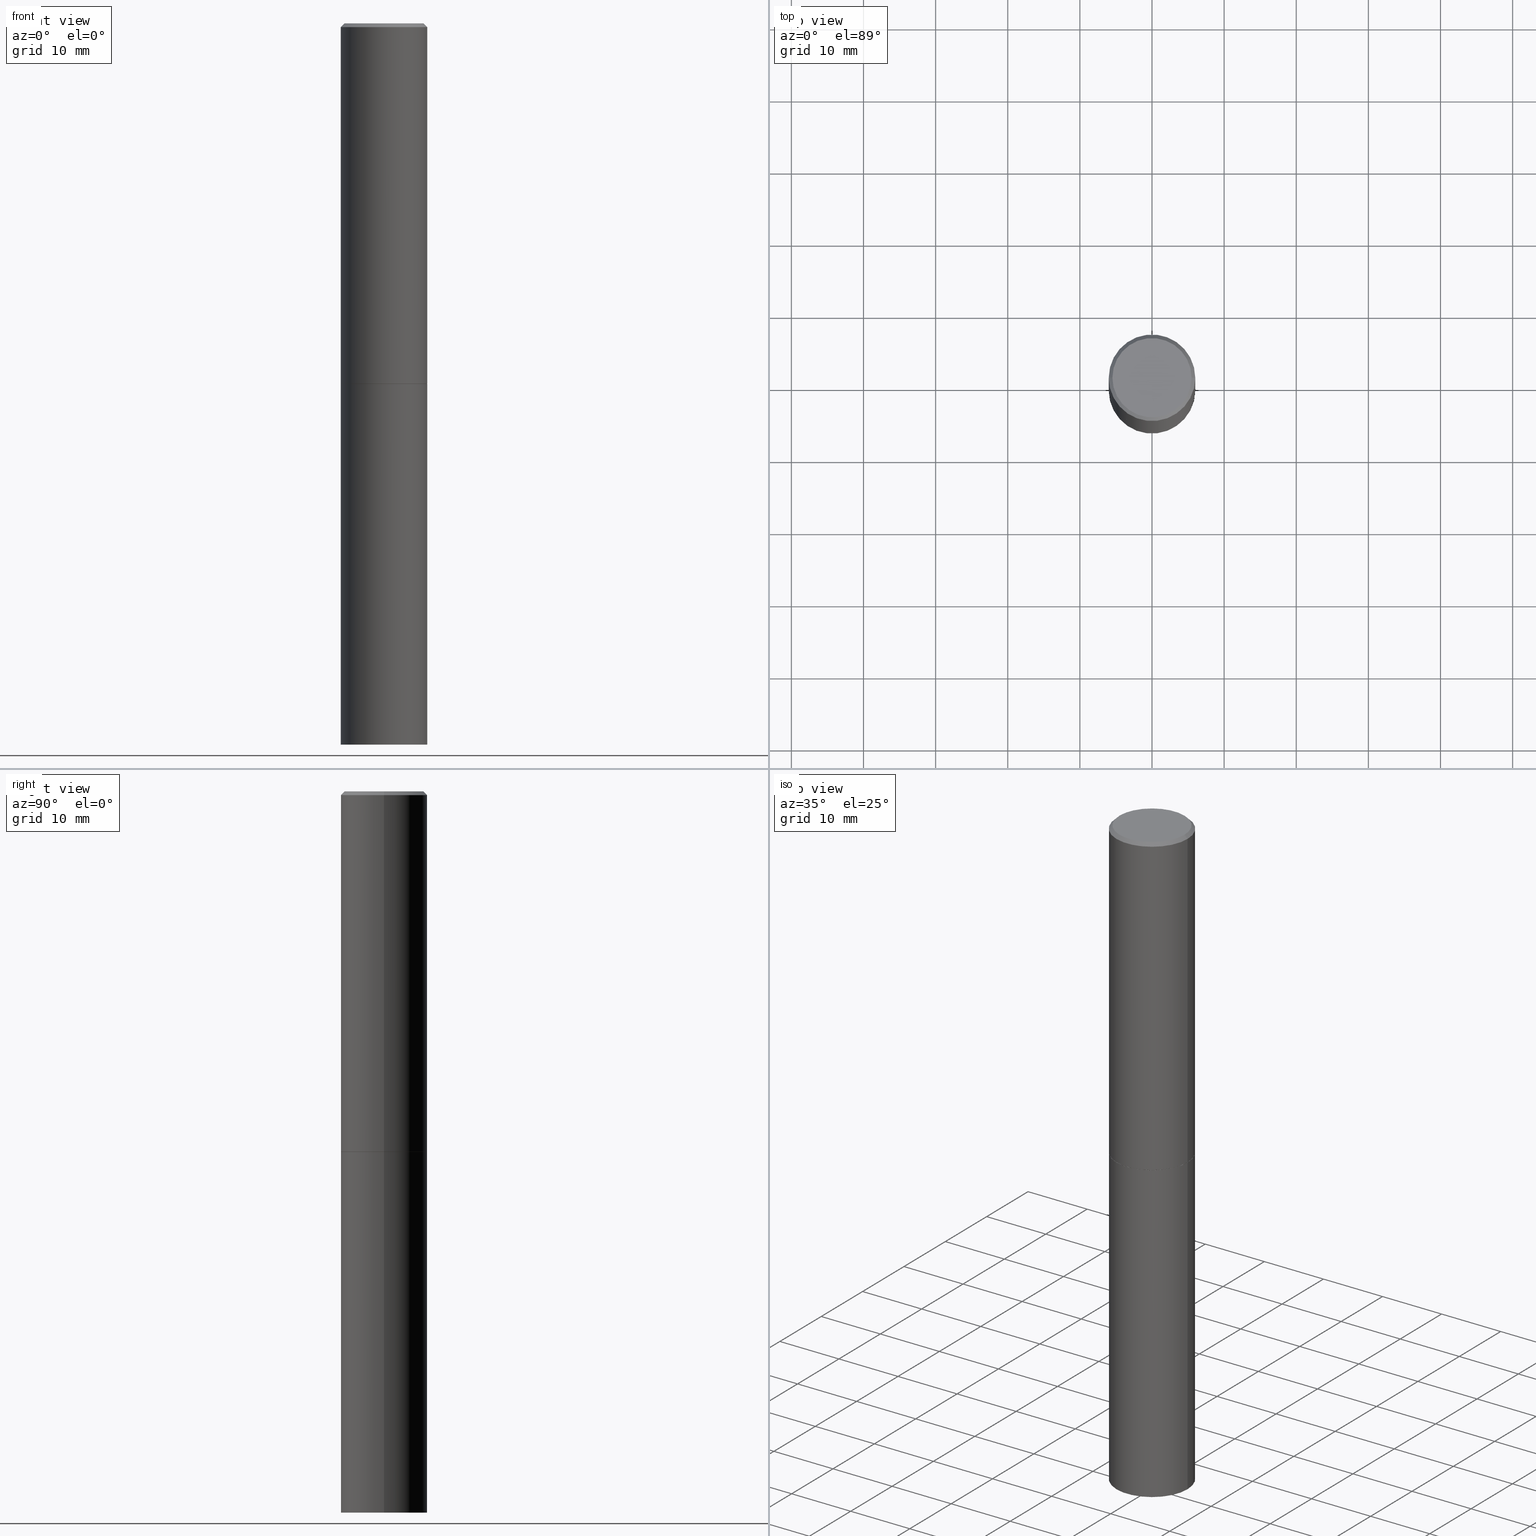
[diagram: canonical four-view strip — front | top / right | iso, engineering-drawing reading convention]
A machine part, canonical four-view strip (front | top / right | iso — engineering-drawing reading convention). The complete STEP part file that produces these views, byte-faithful:
ISO-10303-21;
HEADER;
FILE_DESCRIPTION (( 'STEP AP203' ),
    '1' );
FILE_NAME ('49459.STEP',
    '2024-02-28T22:10:55',
    ( '' ),
    ( '' ),
    'SwSTEP 2.0',
    'SolidWorks 2023',
    '' );
FILE_SCHEMA (( 'CONFIG_CONTROL_DESIGN' ));
ENDSEC;

DATA;
#1 = ORIENTED_EDGE ( 'NONE', *, *, #225, .T. ) ;
#2 = ORGANIZATION ( 'UNSPECIFIED', 'UNSPECIFIED', '' ) ;
#3 = ORIENTED_EDGE ( 'NONE', *, *, #362, .T. ) ;
#4 = CARTESIAN_POINT ( 'NONE',  ( 4.890937612370292426E-31, -6.982962677686317493E-17, -0.02000000000000007674 ) ) ;
#5 = PERSON_AND_ORGANIZATION ( #190, #2 ) ;
#6 = CYLINDRICAL_SURFACE ( 'NONE', #131, 0.2361999999999998545 ) ;
#7 = VECTOR ( 'NONE', #180, 39.37007874015748854 ) ;
#8 = DIRECTION ( 'NONE',  ( -2.445468806185136597E-29, 3.491481338843145583E-15, 1.000000000000000000 ) ) ;
#9 = VECTOR ( 'NONE', #206, 39.37007874015748143 ) ;
#10 = DIRECTION ( 'NONE',  ( -2.445468806185136597E-29, 3.491481338843145583E-15, 1.000000000000000000 ) ) ;
#11 = ADVANCED_FACE ( 'NONE', ( #212 ), #333, .F. ) ;
#12 = PERSON_AND_ORGANIZATION_ROLE ( 'classification_officer' ) ;
#13 = LINE ( 'NONE', #16, #7 ) ;
#14 = CIRCLE ( 'NONE', #178, 0.2351999999999999924 ) ;
#15 = AXIS2_PLACEMENT_3D ( 'NONE', #55, #278, #81 ) ;
#16 = CARTESIAN_POINT ( 'NONE',  ( 0.2351999999999999924, -8.515373837304542218E-15, -1.968500000000000139 ) ) ;
#17 = ORIENTED_EDGE ( 'NONE', *, *, #251, .F. ) ;
#18 = COORDINATED_UNIVERSAL_TIME_OFFSET ( 5, 0, .BEHIND. ) ;
#19 = AXIS2_PLACEMENT_3D ( 'NONE', #21, #116, #138 ) ;
#20 = AXIS2_PLACEMENT_3D ( 'NONE', #141, #295, #96 ) ;
#21 = CARTESIAN_POINT ( 'NONE',  ( 4.811459876169256232E-29, -6.869489534173888700E-15, -1.967500000000000027 ) ) ;
#22 = EDGE_CURVE ( 'NONE', #124, #188, #343, .T. ) ;
#23 = APPLICATION_PROTOCOL_DEFINITION ( 'international standard', 'config_control_design', 1994, #52 ) ;
#24 = VERTEX_POINT ( 'NONE', #276 ) ;
#25 = DIRECTION ( 'NONE',  ( -2.445468806185136597E-29, 3.491481338843145583E-15, 1.000000000000000000 ) ) ;
#26 = EDGE_LOOP ( 'NONE', ( #82, #361, #48, #109 ) ) ;
#27 = AXIS2_PLACEMENT_3D ( 'NONE', #170, #255, #259 ) ;
#28 = CARTESIAN_POINT ( 'NONE',  ( 4.890937612370292426E-31, -6.982962677686317493E-17, -0.02000000000000007674 ) ) ;
#29 = CC_DESIGN_PERSON_AND_ORGANIZATION_ASSIGNMENT ( #198, #37, ( #315 ) ) ;
#30 = ADVANCED_BREP_SHAPE_REPRESENTATION ( '49459', ( #326, #66, #15 ), #173 ) ;
#31 = DATE_AND_TIME ( #307, #203 ) ;
#32 = APPROVAL_ROLE ( '' ) ;
#33 = CC_DESIGN_APPROVAL ( #246, ( #315 ) ) ;
#34 = DIRECTION ( 'NONE',  ( 1.000000000000000000, -6.982962677686265133E-15, 0.000000000000000000 ) ) ;
#35 = DATE_AND_TIME ( #264, #167 ) ;
#36 = EDGE_CURVE ( 'NONE', #24, #160, #64, .T. ) ;
#37 = PERSON_AND_ORGANIZATION_ROLE ( 'creator' ) ;
#38 = DIRECTION ( 'NONE',  ( -2.445468806185136597E-29, 3.491481338843145583E-15, 1.000000000000000000 ) ) ;
#39 = APPROVAL_STATUS ( 'not_yet_approved' ) ;
#40 = PERSON_AND_ORGANIZATION ( #190, #2 ) ;
#41 = DIRECTION ( 'NONE',  ( -2.445468806185136597E-29, 3.491481338843145583E-15, 1.000000000000000000 ) ) ;
#42 = DIRECTION ( 'NONE',  ( -2.445468806185136597E-29, 3.491481338843145583E-15, 1.000000000000000000 ) ) ;
#43 = CYLINDRICAL_SURFACE ( 'NONE', #108, 0.2361999999999999933 ) ;
#44 = CLOSED_SHELL ( 'NONE', ( #175, #297, #308, #329 ) ) ;
#45 = ORIENTED_EDGE ( 'NONE', *, *, #208, .T. ) ;
#46 = VERTEX_POINT ( 'NONE', #284 ) ;
#47 = DIRECTION ( 'NONE',  ( 1.000000000000000000, -6.982962677686266711E-15, 4.876176775795935793E-29 ) ) ;
#48 = ORIENTED_EDGE ( 'NONE', *, *, #152, .T. ) ;
#49 = EDGE_CURVE ( 'NONE', #51, #303, #357, .T. ) ;
#50 = VECTOR ( 'NONE', #317, 39.37007874015748143 ) ;
#51 = VERTEX_POINT ( 'NONE', #162 ) ;
#52 = APPLICATION_CONTEXT ( 'configuration controlled 3d designs of mechanical parts and assemblies' ) ;
#53 = ORIENTED_EDGE ( 'NONE', *, *, #36, .F. ) ;
#54 = ADVANCED_FACE ( 'NONE', ( #60 ), #211, .T. ) ;
#55 = CARTESIAN_POINT ( 'NONE',  ( 0.000000000000000000, 0.000000000000000000, 0.000000000000000000 ) ) ;
#56 = ORIENTED_EDGE ( 'NONE', *, *, #22, .F. ) ;
#57 = CARTESIAN_POINT ( 'NONE',  ( -1.043851414335219820E-46, 1.490343170380447200E-32, 4.268512490100411279E-18 ) ) ;
#58 = CARTESIAN_POINT ( 'NONE',  ( 9.627810689950883669E-29, -1.374596203102546341E-14, -3.937000000000000277 ) ) ;
#59 = DATE_AND_TIME ( #84, #338 ) ;
#60 = FACE_OUTER_BOUND ( 'NONE', #322, .T. ) ;
#61 = DIRECTION ( 'NONE',  ( -2.445468806185136597E-29, 3.491481338843145583E-15, 1.000000000000000000 ) ) ;
#62 = DIRECTION ( 'NONE',  ( 1.000000000000000000, -6.982962677686264344E-15, 0.000000000000000000 ) ) ;
#63 = FACE_OUTER_BOUND ( 'NONE', #106, .T. ) ;
#64 = CIRCLE ( 'NONE', #19, 0.2361999999999999933 ) ;
#65 = ORIENTED_EDGE ( 'NONE', *, *, #139, .F. ) ;
#66 = MANIFOLD_SOLID_BREP ( 'Body-Move/Copy2[2]', #323 ) ;
#67 = DATE_AND_TIME ( #324, #196 ) ;
#68 = CARTESIAN_POINT ( 'NONE',  ( 4.813905344975441835E-29, -6.872981015512731707E-15, -1.968500000000000139 ) ) ;
#69 = ORIENTED_EDGE ( 'NONE', *, *, #128, .T. ) ;
#70 = CARTESIAN_POINT ( 'NONE',  ( 1.649375784469592175E-15, 0.2361999999999862265, -3.937000000000001165 ) ) ;
#71 = ORIENTED_EDGE ( 'NONE', *, *, #102, .T. ) ;
#72 = AXIS2_PLACEMENT_3D ( 'NONE', #91, #25, #47 ) ;
#73 = PRODUCT ( '49459', '49459', '', ( #213 ) ) ;
#74 = PERSON_AND_ORGANIZATION ( #190, #2 ) ;
#75 = CARTESIAN_POINT ( 'NONE',  ( 4.813905344975441835E-29, -6.872981015512731707E-15, -1.968500000000000139 ) ) ;
#76 = EDGE_CURVE ( 'NONE', #51, #151, #283, .T. ) ;
#77 = VERTEX_POINT ( 'NONE', #350 ) ;
#78 = PRODUCT_DEFINITION ( 'UNKNOWN', '', #315, #134 ) ;
#79 = ORIENTED_EDGE ( 'NONE', *, *, #169, .F. ) ;
#80 = CONICAL_SURFACE ( 'NONE', #351, 0.2351999999999999924, 0.7853981633974141952 ) ;
#81 = DIRECTION ( 'NONE',  ( 1.000000000000000000, 0.000000000000000000, 0.000000000000000000 ) ) ;
#82 = ORIENTED_EDGE ( 'NONE', *, *, #49, .F. ) ;
#83 = ORIENTED_EDGE ( 'NONE', *, *, #195, .F. ) ;
#84 = CALENDAR_DATE ( 2024, 28, 2 ) ;
#85 = DIRECTION ( 'NONE',  ( -2.445468806185136877E-29, 3.491481338843145188E-15, 1.000000000000000000 ) ) ;
#86 = AXIS2_PLACEMENT_3D ( 'NONE', #90, #42, #321 ) ;
#87 = EDGE_CURVE ( 'NONE', #160, #77, #226, .T. ) ;
#88 = LINE ( 'NONE', #111, #222 ) ;
#89 = DIRECTION ( 'NONE',  ( -2.445468806185136597E-29, 3.491481338843145583E-15, 1.000000000000000000 ) ) ;
#90 = CARTESIAN_POINT ( 'NONE',  ( 0.000000000000000000, 0.000000000000000000, 0.000000000000000000 ) ) ;
#91 = CARTESIAN_POINT ( 'NONE',  ( 0.000000000000000000, 0.000000000000000000, 0.000000000000000000 ) ) ;
#92 = VECTOR ( 'NONE', #347, 39.37007874015748143 ) ;
#93 = FACE_OUTER_BOUND ( 'NONE', #104, .T. ) ;
#94 = PERSON_AND_ORGANIZATION ( #190, #2 ) ;
#95 = DIRECTION ( 'NONE',  ( -2.445468806185136597E-29, 3.491481338843145583E-15, 1.000000000000000000 ) ) ;
#96 = DIRECTION ( 'NONE',  ( -1.000000000000000000, 6.982962677686265922E-15, -4.876176775795935793E-29 ) ) ;
#97 = ORIENTED_EDGE ( 'NONE', *, *, #152, .F. ) ;
#98 = APPLICATION_CONTEXT ( 'configuration controlled 3d designs of mechanical parts and assemblies' ) ;
#99 = LINE ( 'NONE', #271, #150 ) ;
#100 = CIRCLE ( 'NONE', #189, 0.2351999999999999924 ) ;
#101 = ORIENTED_EDGE ( 'NONE', *, *, #22, .T. ) ;
#102 = EDGE_CURVE ( 'NONE', #303, #77, #224, .T. ) ;
#103 = DIRECTION ( 'NONE',  ( 1.000000000000000000, -6.982962677686265133E-15, 0.000000000000000000 ) ) ;
#104 = EDGE_LOOP ( 'NONE', ( #327, #305, #53, #156 ) ) ;
#105 =( CONVERSION_BASED_UNIT ( 'INCH', #154 ) LENGTH_UNIT ( ) NAMED_UNIT ( #107 ) );
#106 = EDGE_LOOP ( 'NONE', ( #216, #238, #97, #270 ) ) ;
#107 = DIMENSIONAL_EXPONENTS ( 1.000000000000000000, 0.000000000000000000, 0.000000000000000000, 0.000000000000000000, 0.000000000000000000, 0.000000000000000000, 0.000000000000000000 ) ;
#108 = AXIS2_PLACEMENT_3D ( 'NONE', #263, #266, #200 ) ;
#109 = ORIENTED_EDGE ( 'NONE', *, *, #102, .F. ) ;
#110 = DIRECTION ( 'NONE',  ( 1.000000000000000000, -6.982962677686266711E-15, 0.000000000000000000 ) ) ;
#111 = CARTESIAN_POINT ( 'NONE',  ( -0.2361999999999999933, 1.678301941865356591E-15, -1.161852468318208757E-29 ) ) ;
#112 = AXIS2_PLACEMENT_3D ( 'NONE', #341, #89, #227 ) ;
#113 = CONICAL_SURFACE ( 'NONE', #316, 0.2361999999999997712, 0.7853981633974469467 ) ;
#114 = DIRECTION ( 'NONE',  ( 1.000000000000000000, -6.982962677686267499E-15, 4.876217060660161841E-29 ) ) ;
#115 = CC_DESIGN_DATE_AND_TIME_ASSIGNMENT ( #31, #249, ( #78 ) ) ;
#116 = DIRECTION ( 'NONE',  ( -2.445468806185136597E-29, 3.491481338843145583E-15, 1.000000000000000000 ) ) ;
#117 = AXIS2_PLACEMENT_3D ( 'NONE', #143, #318, #291 ) ;
#118 = FACE_OUTER_BOUND ( 'NONE', #210, .T. ) ;
#119 = PERSON_AND_ORGANIZATION ( #190, #2 ) ;
#120 = FACE_OUTER_BOUND ( 'NONE', #127, .T. ) ;
#121 = VECTOR ( 'NONE', #285, 39.37007874015748854 ) ;
#122 = CARTESIAN_POINT ( 'NONE',  ( -0.2361999999999999933, -8.631169581403741167E-15, -3.937000000000000277 ) ) ;
#123 = CARTESIAN_POINT ( 'NONE',  ( -0.2161999999999997257, 1.544631344304200197E-15, 4.268512490089730842E-18 ) ) ;
#124 = VERTEX_POINT ( 'NONE', #220 ) ;
#125 = CARTESIAN_POINT ( 'NONE',  ( 9.627810689950883669E-29, -1.374596203102546341E-14, -3.937000000000000277 ) ) ;
#126 = ORIENTED_EDGE ( 'NONE', *, *, #348, .T. ) ;
#127 = EDGE_LOOP ( 'NONE', ( #101, #69, #65, #353 ) ) ;
#128 = EDGE_CURVE ( 'NONE', #188, #46, #88, .T. ) ;
#129 = CARTESIAN_POINT ( 'NONE',  ( -0.2351999999999999924, -5.196486046656753130E-15, -1.968500000000000139 ) ) ;
#130 = EDGE_LOOP ( 'NONE', ( #366, #302, #126, #340 ) ) ;
#131 = AXIS2_PLACEMENT_3D ( 'NONE', #163, #133, #245 ) ;
#132 = APPROVAL_PERSON_ORGANIZATION ( #140, #246, #235 ) ;
#133 = DIRECTION ( 'NONE',  ( -2.445468806185136597E-29, 3.491481338843145583E-15, 1.000000000000000000 ) ) ;
#134 = DESIGN_CONTEXT ( 'detailed design', #98, 'design' ) ;
#135 = CARTESIAN_POINT ( 'NONE',  ( 0.2361999999999997712, -1.690279253850497193E-15, -0.02000000000000007674 ) ) ;
#136 = CIRCLE ( 'NONE', #349, 0.2361999999999999933 ) ;
#137 = COORDINATED_UNIVERSAL_TIME_OFFSET ( 5, 0, .BEHIND. ) ;
#138 = DIRECTION ( 'NONE',  ( 1.000000000000000000, -6.982962677686265133E-15, 0.000000000000000000 ) ) ;
#139 = EDGE_CURVE ( 'NONE', #299, #46, #274, .T. ) ;
#140 = PERSON_AND_ORGANIZATION ( #190, #2 ) ;
#141 = CARTESIAN_POINT ( 'NONE',  ( 1.649375784469544054E-15, 0.2361999999999931377, -1.968500000000000805 ) ) ;
#142 = PERSON_AND_ORGANIZATION_ROLE ( 'design_supplier' ) ;
#143 = CARTESIAN_POINT ( 'NONE',  ( 4.813905344975441835E-29, -6.872981015512731707E-15, -1.968500000000000139 ) ) ;
#144 = CARTESIAN_POINT ( 'NONE',  ( 0.2361999999999999933, -8.522356799982228232E-15, -1.968500000000000139 ) ) ;
#145 = ADVANCED_FACE ( 'NONE', ( #248 ), #6, .T. ) ;
#146 = APPROVAL_DATE_TIME ( #67, #252 ) ;
#147 = APPROVAL_DATE_TIME ( #35, #246 ) ;
#148 = CIRCLE ( 'NONE', #234, 0.2161999999999997257 ) ;
#149 = DIRECTION ( 'NONE',  ( 2.438088387897960049E-29, -3.491481338843145188E-15, -1.000000000000000000 ) ) ;
#150 = VECTOR ( 'NONE', #275, 39.37007874015748143 ) ;
#151 = VERTEX_POINT ( 'NONE', #168 ) ;
#152 = EDGE_CURVE ( 'NONE', #151, #77, #337, .T. ) ;
#153 = CARTESIAN_POINT ( 'NONE',  ( 4.813905344975441835E-29, -6.872981015512731707E-15, -1.968500000000000139 ) ) ;
#154 = LENGTH_MEASURE_WITH_UNIT ( LENGTH_MEASURE( 0.02539999999999999897 ), #157 );
#155 = DIRECTION ( 'NONE',  ( -2.438088387897960049E-29, 3.491481338843145188E-15, 1.000000000000000000 ) ) ;
#156 = ORIENTED_EDGE ( 'NONE', *, *, #348, .F. ) ;
#157 =( LENGTH_UNIT ( ) NAMED_UNIT ( * ) SI_UNIT ( $, .METRE. ) );
#158 = CALENDAR_DATE ( 2024, 28, 2 ) ;
#159 = ADVANCED_FACE ( 'NONE', ( #193 ), #221, .F. ) ;
#160 = VERTEX_POINT ( 'NONE', #309 ) ;
#161 = AXIS2_PLACEMENT_3D ( 'NONE', #68, #10, #262 ) ;
#162 = CARTESIAN_POINT ( 'NONE',  ( 0.2161999999999997257, -1.586759460484350213E-15, 4.268512490111238857E-18 ) ) ;
#163 = CARTESIAN_POINT ( 'NONE',  ( 0.000000000000000000, 0.000000000000000000, 0.000000000000000000 ) ) ;
#164 = EDGE_CURVE ( 'NONE', #188, #124, #136, .T. ) ;
#165 = CARTESIAN_POINT ( 'NONE',  ( -0.2361999999999998545, 1.678301941865355605E-15, -1.161852468318208056E-29 ) ) ;
#166 = AXIS2_PLACEMENT_3D ( 'NONE', #199, #38, #174 ) ;
#167 = LOCAL_TIME ( 17, 10, 55.00000000000000000, #320 ) ;
#168 = CARTESIAN_POINT ( 'NONE',  ( 0.2361999999999997712, -1.690279253850497193E-15, -0.02000000000000007674 ) ) ;
#169 = EDGE_CURVE ( 'NONE', #77, #151, #257, .T. ) ;
#170 = CARTESIAN_POINT ( 'NONE',  ( 4.811459876169256232E-29, -6.869489534173888700E-15, -1.967500000000000027 ) ) ;
#171 = LINE ( 'NONE', #254, #121 ) ;
#172 = DIRECTION ( 'NONE',  ( 1.000000000000000000, -6.982962677686264344E-15, 0.000000000000000000 ) ) ;
#173 =( GEOMETRIC_REPRESENTATION_CONTEXT ( 3 ) GLOBAL_UNCERTAINTY_ASSIGNED_CONTEXT ( ( #233 ) ) GLOBAL_UNIT_ASSIGNED_CONTEXT ( ( #105, #215, #335 ) ) REPRESENTATION_CONTEXT ( 'NONE', 'WORKASPACE' ) );
#174 = DIRECTION ( 'NONE',  ( 1.000000000000000000, -6.982962677686266711E-15, 0.000000000000000000 ) ) ;
#175 = ADVANCED_FACE ( 'NONE', ( #120 ), #201, .T. ) ;
#176 = VERTEX_POINT ( 'NONE', #293 ) ;
#177 = APPROVAL_STATUS ( 'not_yet_approved' ) ;
#178 = AXIS2_PLACEMENT_3D ( 'NONE', #359, #95, #62 ) ;
#179 = SECURITY_CLASSIFICATION ( '', '', #261 ) ;
#180 = DIRECTION ( 'NONE',  ( 0.7071067811865232589, -2.468850131082003836E-15, 0.7071067811865715536 ) ) ;
#181 = ORIENTED_EDGE ( 'NONE', *, *, #290, .F. ) ;
#182 = APPROVAL_STATUS ( 'not_yet_approved' ) ;
#183 = EDGE_LOOP ( 'NONE', ( #17, #83 ) ) ;
#184 = EDGE_LOOP ( 'NONE', ( #244, #1 ) ) ;
#185 = ORIENTED_EDGE ( 'NONE', *, *, #230, .T. ) ;
#186 = ORIENTED_EDGE ( 'NONE', *, *, #169, .T. ) ;
#187 = APPROVAL ( #182, 'UNSPECIFIED' ) ;
#188 = VERTEX_POINT ( 'NONE', #122 ) ;
#189 = AXIS2_PLACEMENT_3D ( 'NONE', #294, #41, #172 ) ;
#190 = PERSON ( 'UNSPECIFIED', 'UNSPECIFIED', 'UNSPECIFIED', ('UNSPECIFIED'), ('UNSPECIFIED'), ('UNSPECIFIED') ) ;
#191 = COORDINATED_UNIVERSAL_TIME_OFFSET ( 5, 0, .BEHIND. ) ;
#192 = DIRECTION ( 'NONE',  ( 2.438088387897960049E-29, -3.491481338843145188E-15, -1.000000000000000000 ) ) ;
#193 = FACE_OUTER_BOUND ( 'NONE', #339, .T. ) ;
#194 = DIRECTION ( 'NONE',  ( -2.445468806185136597E-29, 3.491481338843145583E-15, 1.000000000000000000 ) ) ;
#195 = EDGE_CURVE ( 'NONE', #364, #176, #14, .T. ) ;
#196 = LOCAL_TIME ( 17, 10, 55.00000000000000000, #18 ) ;
#197 = DIRECTION ( 'NONE',  ( -1.000000000000000000, 6.982962677686266711E-15, 0.000000000000000000 ) ) ;
#198 = PERSON_AND_ORGANIZATION ( #190, #2 ) ;
#199 = CARTESIAN_POINT ( 'NONE',  ( 4.890937612370292426E-31, -6.982962677686317493E-17, -0.02000000000000007674 ) ) ;
#200 = DIRECTION ( 'NONE',  ( 1.000000000000000000, -6.982962677686266711E-15, 4.876176775795936353E-29 ) ) ;
#201 = CYLINDRICAL_SURFACE ( 'NONE', #86, 0.2361999999999999933 ) ;
#202 = VECTOR ( 'NONE', #253, 39.37007874015748143 ) ;
#203 = LOCAL_TIME ( 17, 10, 55.00000000000000000, #191 ) ;
#204 = CC_DESIGN_DATE_AND_TIME_ASSIGNMENT ( #273, #298, ( #179 ) ) ;
#205 = APPROVAL_ROLE ( '' ) ;
#206 = DIRECTION ( 'NONE',  ( -2.445468806185136877E-29, 3.491481338843145188E-15, 1.000000000000000000 ) ) ;
#207 = FACE_OUTER_BOUND ( 'NONE', #184, .T. ) ;
#208 = EDGE_CURVE ( 'NONE', #160, #24, #239, .T. ) ;
#209 = PLANE ( 'NONE',  #344 ) ;
#210 = EDGE_LOOP ( 'NONE', ( #236, #336, #185, #268 ) ) ;
#211 = CONICAL_SURFACE ( 'NONE', #296, 0.2361999999999997712, 0.7853981633974469467 ) ;
#212 = FACE_OUTER_BOUND ( 'NONE', #183, .T. ) ;
#213 = MECHANICAL_CONTEXT ( 'NONE', #52, 'mechanical' ) ;
#214 = ORIENTED_EDGE ( 'NONE', *, *, #76, .F. ) ;
#215 =( NAMED_UNIT ( * ) PLANE_ANGLE_UNIT ( ) SI_UNIT ( $, .RADIAN. ) );
#216 = ORIENTED_EDGE ( 'NONE', *, *, #36, .T. ) ;
#217 = CC_DESIGN_SECURITY_CLASSIFICATION ( #179, ( #315 ) ) ;
#218 = ORIENTED_EDGE ( 'NONE', *, *, #290, .T. ) ;
#219 = ADVANCED_FACE ( 'NONE', ( #93 ), #328, .T. ) ;
#220 = CARTESIAN_POINT ( 'NONE',  ( 0.2361999999999999933, -1.539533781549495994E-14, -3.937000000000000277 ) ) ;
#221 = PLANE ( 'NONE',  #312 ) ;
#222 = VECTOR ( 'NONE', #85, 39.37007874015748143 ) ;
#223 = LOCAL_TIME ( 17, 10, 55.00000000000000000, #267 ) ;
#224 = LINE ( 'NONE', #281, #92 ) ;
#225 = EDGE_CURVE ( 'NONE', #46, #299, #280, .T. ) ;
#226 = LINE ( 'NONE', #165, #50 ) ;
#227 = DIRECTION ( 'NONE',  ( 1.000000000000000000, -6.982962677686269077E-15, 0.000000000000000000 ) ) ;
#228 = APPROVAL_PERSON_ORGANIZATION ( #40, #252, #205 ) ;
#229 = DIRECTION ( 'NONE',  ( -1.000000000000000000, 6.982962677686265922E-15, -4.876176775795935793E-29 ) ) ;
#230 = EDGE_CURVE ( 'NONE', #124, #299, #232, .T. ) ;
#231 = CYLINDRICAL_SURFACE ( 'NONE', #72, 0.2361999999999998545 ) ;
#232 = LINE ( 'NONE', #355, #9 ) ;
#233 = UNCERTAINTY_MEASURE_WITH_UNIT (LENGTH_MEASURE( 1.000000000000000082E-05 ), #105, 'distance_accuracy_value', 'NONE');
#234 = AXIS2_PLACEMENT_3D ( 'NONE', #314, #61, #356 ) ;
#235 = APPROVAL_ROLE ( '' ) ;
#236 = ORIENTED_EDGE ( 'NONE', *, *, #128, .F. ) ;
#237 = PERSON_AND_ORGANIZATION ( #190, #2 ) ;
#238 = ORIENTED_EDGE ( 'NONE', *, *, #87, .T. ) ;
#239 = CIRCLE ( 'NONE', #27, 0.2361999999999999933 ) ;
#240 = DIRECTION ( 'NONE',  ( -2.445468806185136597E-29, 3.491481338843145583E-15, 1.000000000000000000 ) ) ;
#241 = ORIENTED_EDGE ( 'NONE', *, *, #87, .F. ) ;
#242 = ORIENTED_EDGE ( 'NONE', *, *, #49, .T. ) ;
#243 = AXIS2_PLACEMENT_3D ( 'NONE', #125, #240, #103 ) ;
#244 = ORIENTED_EDGE ( 'NONE', *, *, #139, .T. ) ;
#245 = DIRECTION ( 'NONE',  ( 1.000000000000000000, -6.982962677686266711E-15, 4.876176775795935793E-29 ) ) ;
#246 = APPROVAL ( #39, 'UNSPECIFIED' ) ;
#247 = CARTESIAN_POINT ( 'NONE',  ( 4.890937612370292426E-31, -6.982962677686317493E-17, -0.02000000000000007674 ) ) ;
#248 = FACE_OUTER_BOUND ( 'NONE', #300, .T. ) ;
#249 = DATE_TIME_ROLE ( 'creation_date' ) ;
#250 = DIRECTION ( 'NONE',  ( 2.445468806185136597E-29, -3.491481338843145583E-15, -1.000000000000000000 ) ) ;
#251 = EDGE_CURVE ( 'NONE', #176, #364, #100, .T. ) ;
#252 = APPROVAL ( #177, 'UNSPECIFIED' ) ;
#253 = DIRECTION ( 'NONE',  ( 0.7071067811865465735, -7.319954787623252890E-15, -0.7071067811865484609 ) ) ;
#254 = CARTESIAN_POINT ( 'NONE',  ( -0.2351999999999999924, -5.201784501004976321E-15, -1.968500000000000139 ) ) ;
#255 = DIRECTION ( 'NONE',  ( -2.445468806185136597E-29, 3.491481338843145583E-15, 1.000000000000000000 ) ) ;
#256 = ADVANCED_FACE ( 'NONE', ( #288 ), #113, .T. ) ;
#257 = CIRCLE ( 'NONE', #166, 0.2361999999999997712 ) ;
#258 = CC_DESIGN_APPROVAL ( #187, ( #78 ) ) ;
#259 = DIRECTION ( 'NONE',  ( 1.000000000000000000, -6.982962677686265133E-15, 0.000000000000000000 ) ) ;
#260 = PRODUCT_RELATED_PRODUCT_CATEGORY ( 'detail', '', ( #73 ) ) ;
#261 = SECURITY_CLASSIFICATION_LEVEL ( 'unclassified' ) ;
#262 = DIRECTION ( 'NONE',  ( 1.000000000000000000, -6.982962677686269077E-15, 0.000000000000000000 ) ) ;
#263 = CARTESIAN_POINT ( 'NONE',  ( 0.000000000000000000, 0.000000000000000000, 0.000000000000000000 ) ) ;
#264 = CALENDAR_DATE ( 2024, 28, 2 ) ;
#265 = SHAPE_DEFINITION_REPRESENTATION ( #331, #30 ) ;
#266 = DIRECTION ( 'NONE',  ( -2.445468806185136597E-29, 3.491481338843145583E-15, 1.000000000000000000 ) ) ;
#267 = COORDINATED_UNIVERSAL_TIME_OFFSET ( 5, 0, .BEHIND. ) ;
#268 = ORIENTED_EDGE ( 'NONE', *, *, #225, .F. ) ;
#269 = DIRECTION ( 'NONE',  ( -2.445468806185136597E-29, 3.491481338843145583E-15, 1.000000000000000000 ) ) ;
#270 = ORIENTED_EDGE ( 'NONE', *, *, #362, .F. ) ;
#271 = CARTESIAN_POINT ( 'NONE',  ( 0.2361999999999998545, -1.649375784469495145E-15, 1.151752954442999387E-29 ) ) ;
#272 = DIRECTION ( 'NONE',  ( 1.000000000000000000, -6.982962677686265922E-15, 4.876176775795935793E-29 ) ) ;
#273 = DATE_AND_TIME ( #158, #223 ) ;
#274 = CIRCLE ( 'NONE', #112, 0.2361999999999999933 ) ;
#275 = DIRECTION ( 'NONE',  ( -2.445468806185136877E-29, 3.491481338843145188E-15, 1.000000000000000000 ) ) ;
#276 = CARTESIAN_POINT ( 'NONE',  ( 0.2361999999999999933, -8.518865318643383648E-15, -1.967500000000000027 ) ) ;
#277 = CC_DESIGN_PERSON_AND_ORGANIZATION_ASSIGNMENT ( #5, #342, ( #78 ) ) ;
#278 = DIRECTION ( 'NONE',  ( 0.000000000000000000, 0.000000000000000000, 1.000000000000000000 ) ) ;
#279 = EDGE_LOOP ( 'NONE', ( #56, #365 ) ) ;
#280 = CIRCLE ( 'NONE', #161, 0.2361999999999999933 ) ;
#281 = CARTESIAN_POINT ( 'NONE',  ( -0.2361999999999997712, 1.579546157692631452E-15, -0.02000000000000007674 ) ) ;
#282 = APPROVAL_DATE_TIME ( #59, #187 ) ;
#283 = LINE ( 'NONE', #135, #202 ) ;
#284 = CARTESIAN_POINT ( 'NONE',  ( -0.2361999999999999933, -8.631169581403741167E-15, -1.968500000000000139 ) ) ;
#285 = DIRECTION ( 'NONE',  ( -0.7071067811865232589, 7.493145998870265808E-15, 0.7071067811865715536 ) ) ;
#286 = APPROVAL_PERSON_ORGANIZATION ( #74, #187, #32 ) ;
#287 = CC_DESIGN_PERSON_AND_ORGANIZATION_ASSIGNMENT ( #119, #12, ( #179 ) ) ;
#288 = FACE_OUTER_BOUND ( 'NONE', #26, .T. ) ;
#289 = EDGE_CURVE ( 'NONE', #364, #160, #171, .T. ) ;
#290 = EDGE_CURVE ( 'NONE', #303, #51, #148, .T. ) ;
#291 = DIRECTION ( 'NONE',  ( 1.000000000000000000, -6.982962677686264344E-15, 0.000000000000000000 ) ) ;
#292 = AXIS2_PLACEMENT_3D ( 'NONE', #75, #155, #272 ) ;
#293 = CARTESIAN_POINT ( 'NONE',  ( 0.2351999999999999924, -8.515373837304542218E-15, -1.968500000000000139 ) ) ;
#294 = CARTESIAN_POINT ( 'NONE',  ( 4.813905344975441835E-29, -6.872981015512731707E-15, -1.968500000000000139 ) ) ;
#295 = DIRECTION ( 'NONE',  ( 2.438088387897960049E-29, -3.491481338843145188E-15, -1.000000000000000000 ) ) ;
#296 = AXIS2_PLACEMENT_3D ( 'NONE', #28, #250, #197 ) ;
#297 = ADVANCED_FACE ( 'NONE', ( #325 ), #209, .T. ) ;
#298 = DATE_TIME_ROLE ( 'classification_date' ) ;
#299 = VERTEX_POINT ( 'NONE', #144 ) ;
#300 = EDGE_LOOP ( 'NONE', ( #241, #45, #3, #79 ) ) ;
#301 = AXIS2_PLACEMENT_3D ( 'NONE', #4, #194, #110 ) ;
#302 = ORIENTED_EDGE ( 'NONE', *, *, #195, .T. ) ;
#303 = VERTEX_POINT ( 'NONE', #123 ) ;
#304 = CC_DESIGN_PERSON_AND_ORGANIZATION_ASSIGNMENT ( #94, #142, ( #315 ) ) ;
#305 = ORIENTED_EDGE ( 'NONE', *, *, #289, .T. ) ;
#306 = AXIS2_PLACEMENT_3D ( 'NONE', #57, #8, #114 ) ;
#307 = CALENDAR_DATE ( 2024, 28, 2 ) ;
#308 = ADVANCED_FACE ( 'NONE', ( #207 ), #358, .F. ) ;
#309 = CARTESIAN_POINT ( 'NONE',  ( -0.2362000000000000210, -1.791357638610017633E-15, -1.967500000000000027 ) ) ;
#310 = DIRECTION ( 'NONE',  ( -2.445468806185136597E-29, 3.491481338843145583E-15, 1.000000000000000000 ) ) ;
#311 = DIRECTION ( 'NONE',  ( -1.000000000000000000, 6.982962677686266711E-15, 0.000000000000000000 ) ) ;
#312 = AXIS2_PLACEMENT_3D ( 'NONE', #345, #192, #313 ) ;
#313 = DIRECTION ( 'NONE',  ( -1.000000000000000000, 6.982962677686265922E-15, -4.876176775795935793E-29 ) ) ;
#314 = CARTESIAN_POINT ( 'NONE',  ( -1.043851414335219820E-46, 1.490343170380447200E-32, 4.268512490100411279E-18 ) ) ;
#315 = PRODUCT_DEFINITION_FORMATION_WITH_SPECIFIED_SOURCE ( 'ANY', '', #73, .NOT_KNOWN. ) ;
#316 = AXIS2_PLACEMENT_3D ( 'NONE', #247, #334, #311 ) ;
#317 = DIRECTION ( 'NONE',  ( -2.445468806185136877E-29, 3.491481338843145188E-15, 1.000000000000000000 ) ) ;
#318 = DIRECTION ( 'NONE',  ( -2.445468806185136597E-29, 3.491481338843145583E-15, 1.000000000000000000 ) ) ;
#319 = DIRECTION ( 'NONE',  ( 1.000000000000000000, -6.982962677686264344E-15, 0.000000000000000000 ) ) ;
#320 = COORDINATED_UNIVERSAL_TIME_OFFSET ( 5, 0, .BEHIND. ) ;
#321 = DIRECTION ( 'NONE',  ( 1.000000000000000000, -6.982962677686266711E-15, 4.876176775795936353E-29 ) ) ;
#322 = EDGE_LOOP ( 'NONE', ( #214, #181, #71, #186 ) ) ;
#323 = CLOSED_SHELL ( 'NONE', ( #219, #354, #256, #54, #145, #352, #11, #159 ) ) ;
#324 = CALENDAR_DATE ( 2024, 28, 2 ) ;
#325 = FACE_OUTER_BOUND ( 'NONE', #279, .T. ) ;
#326 = MANIFOLD_SOLID_BREP ( 'Body-Move/Copy2[1]', #44 ) ;
#327 = ORIENTED_EDGE ( 'NONE', *, *, #251, .T. ) ;
#328 = CONICAL_SURFACE ( 'NONE', #117, 0.2351999999999999924, 0.7853981633974141952 ) ;
#329 = ADVANCED_FACE ( 'NONE', ( #118 ), #43, .T. ) ;
#330 = CC_DESIGN_APPROVAL ( #252, ( #179 ) ) ;
#331 = PRODUCT_DEFINITION_SHAPE ( 'NONE', 'NONE',  #78 ) ;
#332 = APPLICATION_PROTOCOL_DEFINITION ( 'international standard', 'config_control_design', 1994, #98 ) ;
#333 = PLANE ( 'NONE',  #292 ) ;
#334 = DIRECTION ( 'NONE',  ( 2.445468806185136597E-29, -3.491481338843145583E-15, -1.000000000000000000 ) ) ;
#335 =( NAMED_UNIT ( * ) SI_UNIT ( $, .STERADIAN. ) SOLID_ANGLE_UNIT ( ) );
#336 = ORIENTED_EDGE ( 'NONE', *, *, #164, .T. ) ;
#337 = CIRCLE ( 'NONE', #301, 0.2361999999999997712 ) ;
#338 = LOCAL_TIME ( 17, 10, 55.00000000000000000, #137 ) ;
#339 = EDGE_LOOP ( 'NONE', ( #218, #242 ) ) ;
#340 = ORIENTED_EDGE ( 'NONE', *, *, #208, .F. ) ;
#341 = CARTESIAN_POINT ( 'NONE',  ( 4.813905344975441835E-29, -6.872981015512731707E-15, -1.968500000000000139 ) ) ;
#342 = PERSON_AND_ORGANIZATION_ROLE ( 'creator' ) ;
#343 = CIRCLE ( 'NONE', #243, 0.2361999999999999933 ) ;
#344 = AXIS2_PLACEMENT_3D ( 'NONE', #70, #149, #229 ) ;
#345 = CARTESIAN_POINT ( 'NONE',  ( 1.509716530915768746E-15, 0.2161999999999997257, -7.527240092128370190E-16 ) ) ;
#346 = CC_DESIGN_PERSON_AND_ORGANIZATION_ASSIGNMENT ( #237, #363, ( #73 ) ) ;
#347 = DIRECTION ( 'NONE',  ( -0.7071067811865465735, 2.468850131082246805E-15, -0.7071067811865484609 ) ) ;
#348 = EDGE_CURVE ( 'NONE', #176, #24, #13, .T. ) ;
#349 = AXIS2_PLACEMENT_3D ( 'NONE', #58, #310, #34 ) ;
#350 = CARTESIAN_POINT ( 'NONE',  ( -0.2361999999999997712, 1.579546157692631452E-15, -0.02000000000000007674 ) ) ;
#351 = AXIS2_PLACEMENT_3D ( 'NONE', #153, #269, #319 ) ;
#352 = ADVANCED_FACE ( 'NONE', ( #360 ), #80, .T. ) ;
#353 = ORIENTED_EDGE ( 'NONE', *, *, #230, .F. ) ;
#354 = ADVANCED_FACE ( 'NONE', ( #63 ), #231, .T. ) ;
#355 = CARTESIAN_POINT ( 'NONE',  ( 0.2361999999999999933, -1.649375784469496131E-15, 1.151752954443000088E-29 ) ) ;
#356 = DIRECTION ( 'NONE',  ( 1.000000000000000000, -6.982962677686267499E-15, 4.876217060660161841E-29 ) ) ;
#357 = CIRCLE ( 'NONE', #306, 0.2161999999999997257 ) ;
#358 = PLANE ( 'NONE',  #20 ) ;
#359 = CARTESIAN_POINT ( 'NONE',  ( 4.813905344975441835E-29, -6.872981015512731707E-15, -1.968500000000000139 ) ) ;
#360 = FACE_OUTER_BOUND ( 'NONE', #130, .T. ) ;
#361 = ORIENTED_EDGE ( 'NONE', *, *, #76, .T. ) ;
#362 = EDGE_CURVE ( 'NONE', #24, #151, #99, .T. ) ;
#363 = PERSON_AND_ORGANIZATION_ROLE ( 'design_owner' ) ;
#364 = VERTEX_POINT ( 'NONE', #129 ) ;
#365 = ORIENTED_EDGE ( 'NONE', *, *, #164, .F. ) ;
#366 = ORIENTED_EDGE ( 'NONE', *, *, #289, .F. ) ;
ENDSEC;
END-ISO-10303-21;
